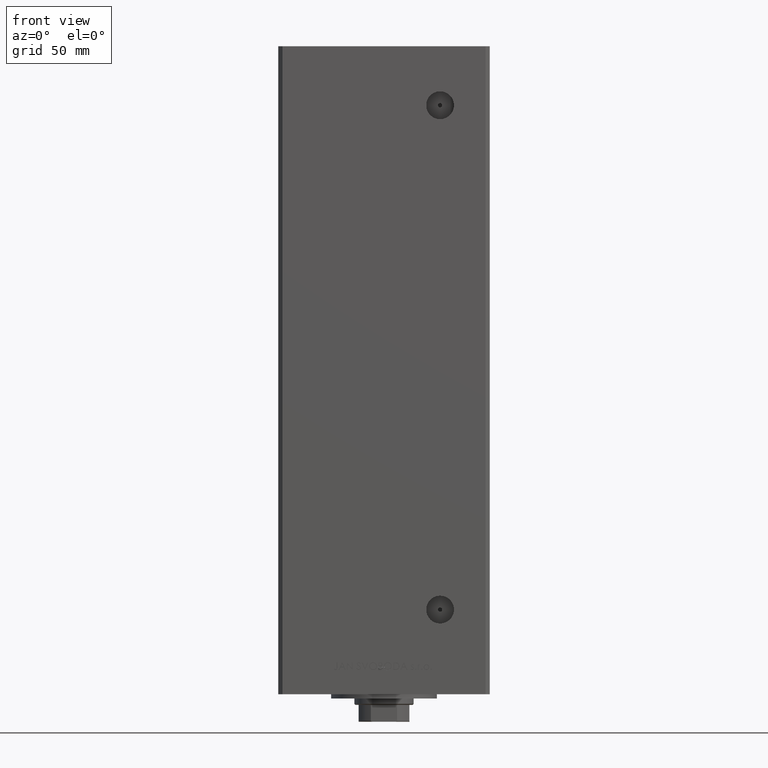
[diagram: clean part render]
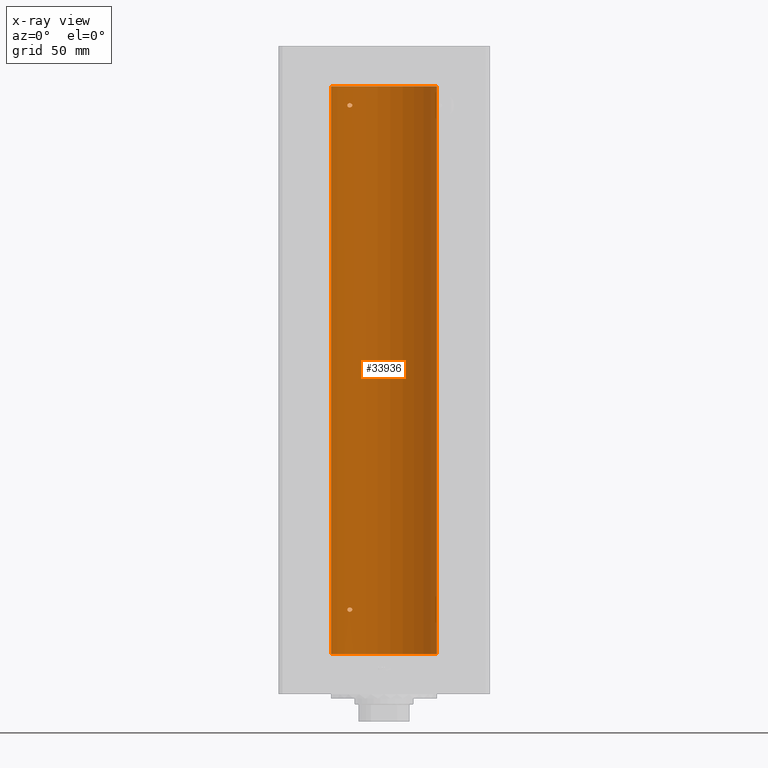
[diagram: x-ray — body ghosted, one internal face saturated and labeled with its STEP entity id]
A machine part, front view, then the same camera in x-ray: the body is ghosted and one INTERNAL B-rep face — a face not visible from any outside direction — is saturated and labeled: STEP entity #33936.
In plain terms, the highlighted cylindrical surface (partial cylindrical patch) has radius 25 mm, axis along (-0, -0, -1).
Its self-contained STEP definition (entity closure, byte-faithful):
#114 = CARTESIAN_POINT ( 'NONE',  ( 0.000000000000000000, 0.000000000000000000, 0.000000000000000000 ) ) ;
#266 = VERTEX_POINT ( 'NONE', #21032 ) ;
#297 = CARTESIAN_POINT ( 'NONE',  ( -17.30269557861142005, 18.04515136187502122, 259.1660420817556769 ) ) ;
#849 = VERTEX_POINT ( 'NONE', #20404 ) ;
#1665 = CARTESIAN_POINT ( 'NONE',  ( -17.34935157289749696, 17.99999999999998579, 20.82899836042583175 ) ) ;
#1882 = FACE_BOUND ( 'NONE', #19221, .T. ) ;
#1920 = CARTESIAN_POINT ( 'NONE',  ( -16.71492528194906768, 18.59135325782697734, 20.08014155834207060 ) ) ;
#3105 = CARTESIAN_POINT ( 'NONE',  ( -14.99999999999999645, 20.00000000000000711, 259.5000000000000000 ) ) ;
#3757 = CARTESIAN_POINT ( 'NONE',  ( 25.00000000000000000, 3.061616997868383043E-15, 268.5000000000000000 ) ) ;
#3882 = CARTESIAN_POINT ( 'NONE',  ( -16.08745393861404338, 19.13692152169251059, 260.4965015099870129 ) ) ;
#4128 = CARTESIAN_POINT ( 'NONE',  ( -16.08745393861406825, 19.13692152169247507, 21.99650150998695608 ) ) ;
#4294 = LINE ( 'NONE', #35191, #47405 ) ;
#4380 = CARTESIAN_POINT ( 'NONE',  ( -15.23594348686703448, 19.82115246225713179, 21.58872193268584638 ) ) ;
#4872 = CARTESIAN_POINT ( 'NONE',  ( -17.34935157289749696, 17.99999999999998224, 21.17097369060635259 ) ) ;
#4936 = CARTESIAN_POINT ( 'NONE',  ( -17.05249165747622442, 18.28208333366434601, 20.29221922003643996 ) ) ;
#5083 = CARTESIAN_POINT ( 'NONE',  ( -15.10490010356604706, 19.92096840819820969, 259.1037666713224894 ) ) ;
#5602 = CARTESIAN_POINT ( 'NONE',  ( -17.34935157289806895, 17.99999999999981526, 259.5000000000001137 ) ) ;
#5954 = CARTESIAN_POINT ( 'NONE',  ( -15.70664578139654566, 19.45064696206090105, 20.10057959949213213 ) ) ;
#6658 = FACE_BOUND ( 'NONE', #15662, .T. ) ;
#6671 = ORIENTED_EDGE ( 'NONE', *, *, #38484, .T. ) ;
#6690 = CARTESIAN_POINT ( 'NONE',  ( -15.06763582406798818, 19.94912143246364877, 259.8250699387717759 ) ) ;
#7355 = VECTOR ( 'NONE', #28993, 1000.000000000000000 ) ;
#7923 = CARTESIAN_POINT ( 'NONE',  ( -15.58230678163764260, 19.55030131031895380, 21.84373948670296173 ) ) ;
#8113 = CARTESIAN_POINT ( 'NONE',  ( -16.34293146994551194, 18.91921593628410747, 258.4973425906726447 ) ) ;
#8167 = CARTESIAN_POINT ( 'NONE',  ( -17.34935157289810093, 17.99999999999978328, 21.00000000000011724 ) ) ;
#8416 = CARTESIAN_POINT ( 'NONE',  ( -16.46913072925707056, 18.81168496547888580, 22.00577755881143815 ) ) ;
#8441 = DIRECTION ( 'NONE',  ( -0.000000000000000000, 0.000000000000000000, 1.000000000000000000 ) ) ;
#8649 = EDGE_CURVE ( 'NONE', #23287, #24230, #16575, .T. ) ;
#9740 = CARTESIAN_POINT ( 'NONE',  ( -15.95808436639362782, 19.24489366819297942, 20.02426087884955308 ) ) ;
#10230 = EDGE_CURVE ( 'NONE', #12932, #266, #37561, .T. ) ;
#10670 = B_SPLINE_CURVE_WITH_KNOTS ( 'NONE', 3,
 ( #11972, #35019, #43390, #27405, #47190, #4380, #12481, #7923, #42873, #23360, #4128, #8416, #46447, #23872, #24111, #39569, #43136, #39326, #4872, #8167 ),
 .UNSPECIFIED., .F., .F.,
 ( 4, 2, 2, 2, 2, 2, 2, 2, 2, 4 ),
 ( 0.004032696862986568168, 0.004284699222246932983, 0.004536701581507298665, 0.005040706300028030031, 0.005544711018548761396, 0.006048715737069493628, 0.007056725174110963297, 0.007308727533371326378, 0.007560729892631690326, 0.008064734611152429497 ),
 .UNSPECIFIED. ) ;
#10729 = CARTESIAN_POINT ( 'NONE',  ( -15.58230678163761240, 19.55030131031897156, 260.3437394867029298 ) ) ;
#11173 = CARTESIAN_POINT ( 'NONE',  ( -16.71492528194900729, 18.59135325782703418, 258.5801415583420066 ) ) ;
#11220 = CARTESIAN_POINT ( 'NONE',  ( -17.14593038898729560, 18.19399314418734903, 260.0959448831965801 ) ) ;
#11972 = CARTESIAN_POINT ( 'NONE',  ( -15.00000000000002842, 19.99999999999998224, 21.00000000000001776 ) ) ;
#12481 = CARTESIAN_POINT ( 'NONE',  ( -15.34624284195510135, 19.73614442075936992, 21.68761853185132793 ) ) ;
#12610 = EDGE_CURVE ( 'NONE', #49311, #27290, #46964, .T. ) ;
#12932 = VERTEX_POINT ( 'NONE', #35057 ) ;
#13556 = CARTESIAN_POINT ( 'NONE',  ( -25.00000000000000000, 0.000000000000000000, 268.5000000000000000 ) ) ;
#14773 = CARTESIAN_POINT ( 'NONE',  ( -15.23594348686698829, 19.82115246225715666, 260.0887219326858144 ) ) ;
#15020 = CARTESIAN_POINT ( 'NONE',  ( -17.19010376497219283, 18.15221652163113930, 260.0356701235680816 ) ) ;
#15263 = CARTESIAN_POINT ( 'NONE',  ( -15.00000000000019185, 20.00000000000002487, 259.5840388036241393 ) ) ;
#15662 = EDGE_LOOP ( 'NONE', ( #19479, #18288 ) ) ;
#16135 = ORIENTED_EDGE ( 'NONE', *, *, #27328, .F. ) ;
#16329 = CARTESIAN_POINT ( 'NONE',  ( -15.06722189748651175, 19.94943357555936458, 20.67598032487890336 ) ) ;
#16575 = B_SPLINE_CURVE_WITH_KNOTS ( 'NONE', 3,
 ( #34964, #30423, #297, #31172, #42822, #27353, #11173, #26613, #8113, #38278, #42074, #19020, #20013, #43339, #28112, #5083, #28632, #44112, #40039, #28366 ),
 .UNSPECIFIED., .F., .F.,
 ( 4, 2, 2, 2, 2, 2, 2, 2, 2, 4 ),
 ( 2.254873622441466949E-16, 0.0005040871078735253931, 0.001008174215746825272, 0.001512261323620125043, 0.002016348431493425030, 0.002520435539366725018, 0.003024522647240024571, 0.003528609755113324559, 0.003780653309049974552, 0.004032696862986624546 ),
 .UNSPECIFIED. ) ;
#16578 = CIRCLE ( 'NONE', #46535, 25.00000000000000000 ) ;
#16839 = CARTESIAN_POINT ( 'NONE',  ( -17.34935157289810093, 17.99999999999978328, 21.00000000000011724 ) ) ;
#17051 = DIRECTION ( 'NONE',  ( -0.000000000000000000, -0.000000000000000000, -1.000000000000000000 ) ) ;
#18054 = CARTESIAN_POINT ( 'NONE',  ( 0.000000000000000000, 0.000000000000000000, 268.5000000000000000 ) ) ;
#18288 = ORIENTED_EDGE ( 'NONE', *, *, #38606, .F. ) ;
#18330 = CARTESIAN_POINT ( 'NONE',  ( -15.95796937689561368, 19.24499537862567777, 260.4757730996522582 ) ) ;
#19020 = CARTESIAN_POINT ( 'NONE',  ( -15.70664578139649414, 19.45064696206094723, 258.6005795994921641 ) ) ;
#19221 = EDGE_LOOP ( 'NONE', ( #32909, #16135 ) ) ;
#19315 = CARTESIAN_POINT ( 'NONE',  ( -16.46913072925703503, 18.81168496547890712, 260.5057775588114168 ) ) ;
#19479 = ORIENTED_EDGE ( 'NONE', *, *, #10230, .F. ) ;
#20013 = CARTESIAN_POINT ( 'NONE',  ( -15.58164749401199423, 19.55082150006406749, 258.6566780726851675 ) ) ;
#20379 = CARTESIAN_POINT ( 'NONE',  ( -15.01482636753736166, 19.98889854010113254, 20.83120266100772611 ) ) ;
#20404 = CARTESIAN_POINT ( 'NONE',  ( -25.00000000000000000, 0.000000000000000000, 0.000000000000000000 ) ) ;
#21032 = CARTESIAN_POINT ( 'NONE',  ( -15.00000000000002842, 19.99999999999998224, 21.00000000000001776 ) ) ;
#21044 = CARTESIAN_POINT ( 'NONE',  ( 25.00000000000000000, 3.061616997868383043E-15, 0.000000000000000000 ) ) ;
#22123 = CARTESIAN_POINT ( 'NONE',  ( -15.34624284195508359, 19.73614442075937703, 260.1876185318512853 ) ) ;
#22248 = DIRECTION ( 'NONE',  ( -0.000000000000000000, 0.000000000000000000, 1.000000000000000000 ) ) ;
#22359 = VERTEX_POINT ( 'NONE', #21044 ) ;
#23287 = VERTEX_POINT ( 'NONE', #5602 ) ;
#23360 = CARTESIAN_POINT ( 'NONE',  ( -15.95796937689564565, 19.24499537862563869, 21.97577309965221559 ) ) ;
#23872 = CARTESIAN_POINT ( 'NONE',  ( -16.99843849356152248, 18.33190197607051886, 21.74683351457567682 ) ) ;
#23953 = EDGE_CURVE ( 'NONE', #22359, #849, #16578, .T. ) ;
#24111 = CARTESIAN_POINT ( 'NONE',  ( -17.05007833789895955, 18.28384926940283606, 21.70137399901215858 ) ) ;
#24172 = CARTESIAN_POINT ( 'NONE',  ( -17.15234217094410596, 18.18812579706693100, 20.39657304377498193 ) ) ;
#24230 = VERTEX_POINT ( 'NONE', #3105 ) ;
#25109 = AXIS2_PLACEMENT_3D ( 'NONE', #49364, #22248, #37702 ) ;
#25181 = CARTESIAN_POINT ( 'NONE',  ( -15.34666241858321634, 19.73581294411414078, 20.31212246053764048 ) ) ;
#25615 = EDGE_CURVE ( 'NONE', #49311, #22359, #4294, .T. ) ;
#25644 = FACE_OUTER_BOUND ( 'NONE', #35835, .T. ) ;
#25913 = CARTESIAN_POINT ( 'NONE',  ( -25.00000000000000000, 0.000000000000000000, 268.5000000000000000 ) ) ;
#26613 = CARTESIAN_POINT ( 'NONE',  ( -16.46844752485323582, 18.81003400474356013, 258.5115443190390465 ) ) ;
#27290 = VERTEX_POINT ( 'NONE', #25913 ) ;
#27328 = EDGE_CURVE ( 'NONE', #24230, #23287, #33806, .T. ) ;
#27353 = CARTESIAN_POINT ( 'NONE',  ( -16.83415218046510020, 18.48332662461728404, 258.6343172662811867 ) ) ;
#27405 = CARTESIAN_POINT ( 'NONE',  ( -15.06763582406801483, 19.94912143246361325, 21.32506993877176882 ) ) ;
#27974 = CARTESIAN_POINT ( 'NONE',  ( -15.58164749401203686, 19.55082150006403907, 20.15667807268521727 ) ) ;
#28112 = CARTESIAN_POINT ( 'NONE',  ( -15.23538646979297084, 19.82157806413533407, 258.9119998952828041 ) ) ;
#28366 = CARTESIAN_POINT ( 'NONE',  ( -14.99999999999999645, 20.00000000000000711, 259.5000000000000000 ) ) ;
#28632 = CARTESIAN_POINT ( 'NONE',  ( -15.06722189748646734, 19.94943357555940366, 259.1759803248789353 ) ) ;
#28988 = CARTESIAN_POINT ( 'NONE',  ( -16.34293146994555812, 18.91921593628406129, 19.99734259067264119 ) ) ;
#28993 = DIRECTION ( 'NONE',  ( -0.000000000000000000, -0.000000000000000000, -1.000000000000000000 ) ) ;
#30222 = CARTESIAN_POINT ( 'NONE',  ( -17.05007833789892402, 18.28384926940287158, 260.2013739990121621 ) ) ;
#30423 = CARTESIAN_POINT ( 'NONE',  ( -17.34935157289746854, 18.00000000000000711, 259.3289983604257145 ) ) ;
#31172 = CARTESIAN_POINT ( 'NONE',  ( -17.15234217094407398, 18.18812579706695232, 258.8965730437749357 ) ) ;
#32798 = CARTESIAN_POINT ( 'NONE',  ( -16.46844752485328911, 18.81003400474351039, 20.01154431903895059 ) ) ;
#32909 = ORIENTED_EDGE ( 'NONE', *, *, #8649, .F. ) ;
#33503 = DIRECTION ( 'NONE',  ( -1.000000000000000000, 0.000000000000000000, 0.000000000000000000 ) ) ;
#33779 = CARTESIAN_POINT ( 'NONE',  ( -17.34935157289746499, 18.00000000000001421, 259.6709736906063313 ) ) ;
#33806 = B_SPLINE_CURVE_WITH_KNOTS ( 'NONE', 3,
 ( #37827, #15263, #34767, #6690, #49490, #14773, #22123, #10729, #45452, #18330, #3882, #19315, #34016, #34525, #30222, #11220, #15020, #45202, #33779, #45698 ),
 .UNSPECIFIED., .F., .F.,
 ( 4, 2, 2, 2, 2, 2, 2, 2, 2, 4 ),
 ( 0.004032696862986624546, 0.004284699222246984157, 0.004536701581507344636, 0.005040706300028063858, 0.005544711018548783947, 0.006048715737069504036, 0.007056725174110945950, 0.007308727533371341123, 0.007560729892631736296, 0.008064734611152526642 ),
 .UNSPECIFIED. ) ;
#33936 = ADVANCED_FACE ( 'NONE', ( #25644, #6658, #1882 ), #41111, .F. ) ;
#34016 = CARTESIAN_POINT ( 'NONE',  ( -16.72476285461318923, 18.58415905903082077, 260.4449447607956358 ) ) ;
#34525 = CARTESIAN_POINT ( 'NONE',  ( -16.99843849356148340, 18.33190197607055794, 260.2468335145756555 ) ) ;
#34767 = CARTESIAN_POINT ( 'NONE',  ( -15.01476641895662212, 19.98894406010707314, 259.6687945634013772 ) ) ;
#34964 = CARTESIAN_POINT ( 'NONE',  ( -17.34935157289806895, 17.99999999999981526, 259.5000000000001137 ) ) ;
#35019 = CARTESIAN_POINT ( 'NONE',  ( -15.00000000000021316, 19.99999999999998934, 21.08403880362418548 ) ) ;
#35057 = CARTESIAN_POINT ( 'NONE',  ( -17.34935157289810093, 17.99999999999978328, 21.00000000000011724 ) ) ;
#35191 = CARTESIAN_POINT ( 'NONE',  ( 25.00000000000000000, 3.061616997868383043E-15, 268.5000000000000000 ) ) ;
#35688 = DIRECTION ( 'NONE',  ( -0.000000000000000000, -0.000000000000000000, -1.000000000000000000 ) ) ;
#35835 = EDGE_LOOP ( 'NONE', ( #36229, #42205, #6671, #46735 ) ) ;
#36229 = ORIENTED_EDGE ( 'NONE', *, *, #25615, .F. ) ;
#36845 = CARTESIAN_POINT ( 'NONE',  ( -15.23538646979301170, 19.82157806413531631, 20.41199989528278991 ) ) ;
#37561 = B_SPLINE_CURVE_WITH_KNOTS ( 'NONE', 3,
 ( #16839, #1665, #48015, #24172, #4936, #47753, #1920, #32798, #28988, #44466, #9740, #5954, #27974, #25181, #36845, #39630, #16329, #20379, #47506, #47483 ),
 .UNSPECIFIED., .F., .F.,
 ( 4, 2, 2, 2, 2, 2, 2, 2, 2, 4 ),
 ( 2.011680962688586771E-16, 0.0005040871078734975291, 0.001008174215746794047, 0.001512261323620090565, 0.002016348431493386866, 0.002520435539366683384, 0.003024522647239979902, 0.003528609755113272951, 0.003780653309049920342, 0.004032696862986568168 ),
 .UNSPECIFIED. ) ;
#37702 = DIRECTION ( 'NONE',  ( 1.000000000000000000, 0.000000000000000000, 0.000000000000000000 ) ) ;
#37827 = CARTESIAN_POINT ( 'NONE',  ( -14.99999999999999645, 20.00000000000000711, 259.5000000000000000 ) ) ;
#38278 = CARTESIAN_POINT ( 'NONE',  ( -16.08757264251630303, 19.13682698743035360, 258.5034427658483196 ) ) ;
#38484 = EDGE_CURVE ( 'NONE', #27290, #849, #43972, .T. ) ;
#38606 = EDGE_CURVE ( 'NONE', #266, #12932, #10670, .T. ) ;
#39096 = DIRECTION ( 'NONE',  ( 1.000000000000000000, 0.000000000000000000, 0.000000000000000000 ) ) ;
#39326 = CARTESIAN_POINT ( 'NONE',  ( -17.30163983552693452, 18.04615713653364750, 21.33600747272780396 ) ) ;
#39569 = CARTESIAN_POINT ( 'NONE',  ( -17.14593038898733113, 18.19399314418732061, 21.59594488319653038 ) ) ;
#39630 = CARTESIAN_POINT ( 'NONE',  ( -15.10490010356607904, 19.92096840819818127, 20.60376667132253914 ) ) ;
#40039 = CARTESIAN_POINT ( 'NONE',  ( -15.00000000000018829, 20.00000000000002132, 259.4159474586024885 ) ) ;
#41111 = CYLINDRICAL_SURFACE ( 'NONE', #43519, 25.00000000000000000 ) ;
#42074 = CARTESIAN_POINT ( 'NONE',  ( -15.95808436639357986, 19.24489366819302205, 258.5242608788495318 ) ) ;
#42205 = ORIENTED_EDGE ( 'NONE', *, *, #12610, .T. ) ;
#42822 = CARTESIAN_POINT ( 'NONE',  ( -17.05249165747617113, 18.28208333366439931, 258.7922192200364293 ) ) ;
#42873 = CARTESIAN_POINT ( 'NONE',  ( -15.70535969280557254, 19.45169171760800708, 21.89896077211251679 ) ) ;
#43136 = CARTESIAN_POINT ( 'NONE',  ( -17.19010376497224968, 18.15221652163108601, 21.53567012356803545 ) ) ;
#43339 = CARTESIAN_POINT ( 'NONE',  ( -15.34666241858317726, 19.73581294411416920, 258.8121224605376938 ) ) ;
#43390 = CARTESIAN_POINT ( 'NONE',  ( -15.01476641895664876, 19.98894406010705183, 21.16879456340136656 ) ) ;
#43519 = AXIS2_PLACEMENT_3D ( 'NONE', #18054, #17051, #33503 ) ;
#43972 = LINE ( 'NONE', #13556, #7355 ) ;
#44112 = CARTESIAN_POINT ( 'NONE',  ( -15.01482636753732436, 19.98889854010116807, 259.3312026610078078 ) ) ;
#44466 = CARTESIAN_POINT ( 'NONE',  ( -16.08757264251635277, 19.13682698743030386, 20.00344276584821657 ) ) ;
#45202 = CARTESIAN_POINT ( 'NONE',  ( -17.30163983552686702, 18.04615713653370790, 259.8360074727278288 ) ) ;
#45452 = CARTESIAN_POINT ( 'NONE',  ( -15.70535969280552635, 19.45169171760803195, 260.3989607721126163 ) ) ;
#45698 = CARTESIAN_POINT ( 'NONE',  ( -17.34935157289806895, 17.99999999999981526, 259.5000000000001137 ) ) ;
#46447 = CARTESIAN_POINT ( 'NONE',  ( -16.72476285461321766, 18.58415905903079945, 21.94494476079571754 ) ) ;
#46535 = AXIS2_PLACEMENT_3D ( 'NONE', #114, #8441, #39096 ) ;
#46735 = ORIENTED_EDGE ( 'NONE', *, *, #23953, .F. ) ;
#46964 = CIRCLE ( 'NONE', #25109, 25.00000000000000000 ) ;
#47190 = CARTESIAN_POINT ( 'NONE',  ( -15.10490800566739011, 19.92096305044238491, 21.39629317404428122 ) ) ;
#47405 = VECTOR ( 'NONE', #35688, 1000.000000000000000 ) ;
#47483 = CARTESIAN_POINT ( 'NONE',  ( -15.00000000000002842, 19.99999999999998224, 21.00000000000001776 ) ) ;
#47506 = CARTESIAN_POINT ( 'NONE',  ( -15.00000000000022027, 20.00000000000000355, 20.91594745860246007 ) ) ;
#47753 = CARTESIAN_POINT ( 'NONE',  ( -16.83415218046515349, 18.48332662461723785, 20.13431726628117602 ) ) ;
#48015 = CARTESIAN_POINT ( 'NONE',  ( -17.30269557861145202, 18.04515136187498570, 20.66604208175575863 ) ) ;
#49311 = VERTEX_POINT ( 'NONE', #3757 ) ;
#49364 = CARTESIAN_POINT ( 'NONE',  ( 0.000000000000000000, 0.000000000000000000, 268.5000000000000000 ) ) ;
#49490 = CARTESIAN_POINT ( 'NONE',  ( -15.10490800566735636, 19.92096305044240623, 259.8962931740442173 ) ) ;